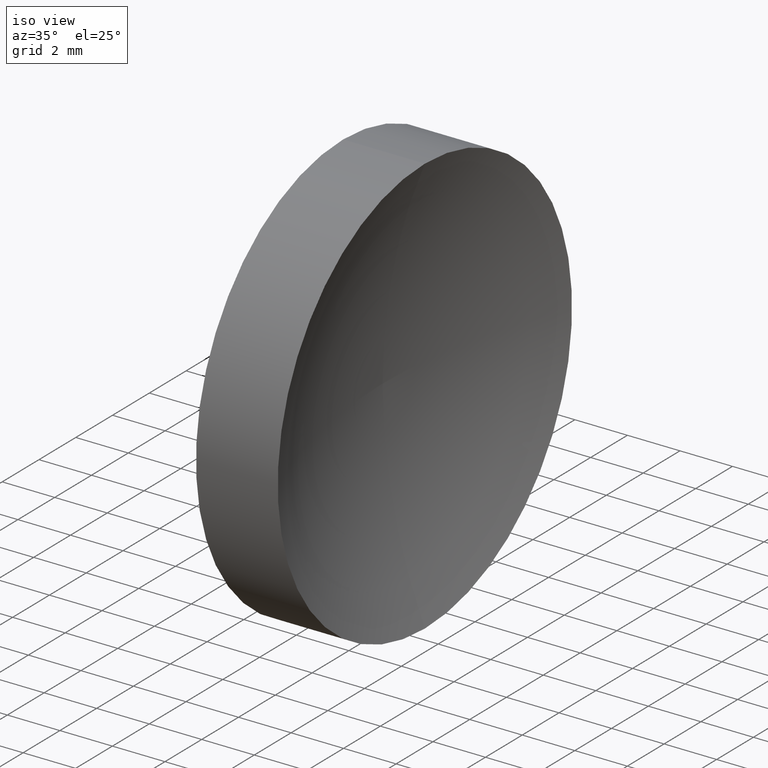
[diagram: clean part render]
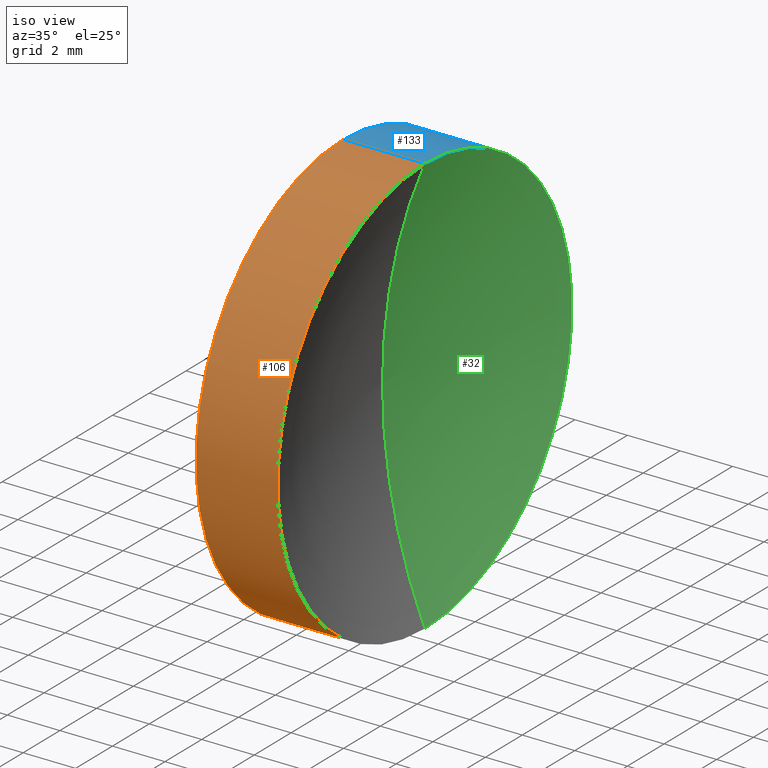
[diagram: same view with three faces highlighted in distinct colors, each labeled with its STEP entity id]
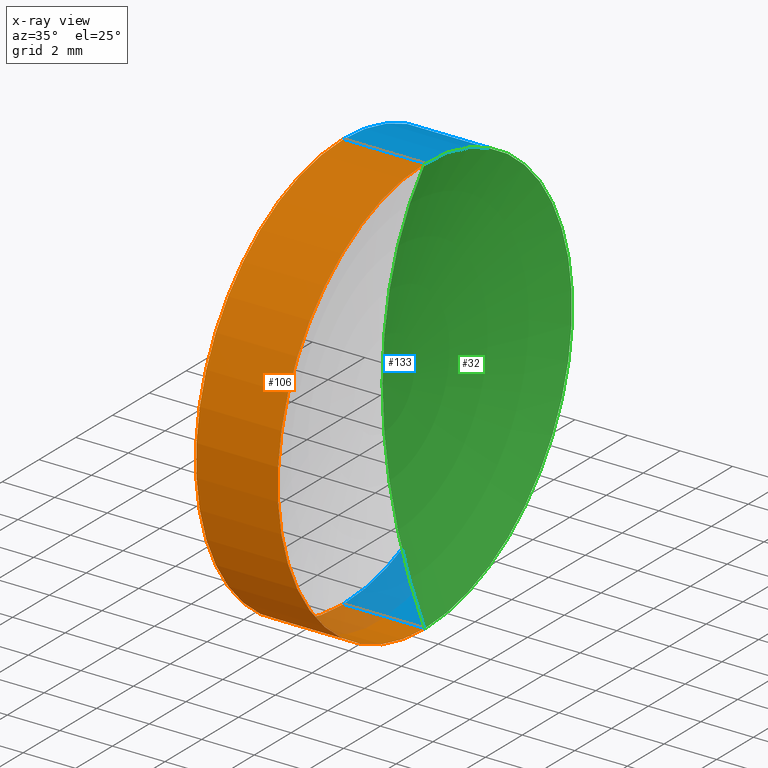
[diagram: x-ray of the same camera — body ghosted, the three highlighted faces saturated]
A machine part, iso view with three faces highlighted in distinct colors.
The next image is the same camera in x-ray (body ghosted, the three faces saturated) — at least one of them is partly hidden behind the body in this view.
Their STEP definitions:

[orange] entity #106 — the highlighted cylindrical surface (partial cylindrical patch) has radius 8 mm, axis along (-1, -0, -0).
#5 = CARTESIAN_POINT ( 'NONE',  ( 47.43122569665025200, 26.08904114919495900, 7.999999999999996400 ) ) ;
#17 = VERTEX_POINT ( 'NONE', #74 ) ;
#19 = VERTEX_POINT ( 'NONE', #75 ) ;
#20 = AXIS2_PLACEMENT_3D ( 'NONE', #154, #116, #129 ) ;
#26 = CARTESIAN_POINT ( 'NONE',  ( 42.44986111413682300, 26.08904114919495900, 8.000000000000000000 ) ) ;
#29 = CARTESIAN_POINT ( 'NONE',  ( 42.44986111413682300, 26.08904114919495900, -8.000000000000000000 ) ) ;
#41 = VECTOR ( 'NONE', #89, 1000.000000000000000 ) ;
#43 = CYLINDRICAL_SURFACE ( 'NONE', #91, 8.000000000000000000 ) ;
#48 = LINE ( 'NONE', #29, #41 ) ;
#55 = DIRECTION ( 'NONE',  ( -1.000000000000000000, -0.0000000000000000000, -0.0000000000000000000 ) ) ;
#58 = FACE_OUTER_BOUND ( 'NONE', #85, .T. ) ;
#68 = DIRECTION ( 'NONE',  ( -1.000000000000000000, -0.0000000000000000000, -0.0000000000000000000 ) ) ;
#74 = CARTESIAN_POINT ( 'NONE',  ( 44.31915269315436500, 26.08904114919495900, -8.000000000000003600 ) ) ;
#75 = CARTESIAN_POINT ( 'NONE',  ( 47.43122569665025200, 26.08904114919495900, -7.999999999999996400 ) ) ;
#76 = ORIENTED_EDGE ( 'NONE', *, *, #123, .F. ) ;
#78 = DIRECTION ( 'NONE',  ( 0.0000000000000000000, 0.0000000000000000000, 1.000000000000000000 ) ) ;
#81 = DIRECTION ( 'NONE',  ( -1.000000000000000000, -0.0000000000000000000, -0.0000000000000000000 ) ) ;
#85 = EDGE_LOOP ( 'NONE', ( #150, #124, #100, #76 ) ) ;
#88 = CIRCLE ( 'NONE', #130, 7.999999999999996400 ) ;
#89 = DIRECTION ( 'NONE',  ( -1.000000000000000000, -0.0000000000000000000, -0.0000000000000000000 ) ) ;
#91 = AXIS2_PLACEMENT_3D ( 'NONE', #159, #81, #92 ) ;
#92 = DIRECTION ( 'NONE',  ( 0.0000000000000000000, 0.0000000000000000000, 1.000000000000000000 ) ) ;
#93 = VECTOR ( 'NONE', #68, 1000.000000000000000 ) ;
#97 = VERTEX_POINT ( 'NONE', #136 ) ;
#98 = EDGE_CURVE ( 'NONE', #122, #97, #162, .T. ) ;
#100 = ORIENTED_EDGE ( 'NONE', *, *, #98, .T. ) ;
#104 = EDGE_CURVE ( 'NONE', #19, #122, #88, .T. ) ;
#106 = ADVANCED_FACE ( 'NONE', ( #58 ), #43, .T. ) ;
#116 = DIRECTION ( 'NONE',  ( -1.000000000000000000, -0.0000000000000000000, -0.0000000000000000000 ) ) ;
#122 = VERTEX_POINT ( 'NONE', #5 ) ;
#123 = EDGE_CURVE ( 'NONE', #17, #97, #143, .T. ) ;
#124 = ORIENTED_EDGE ( 'NONE', *, *, #104, .T. ) ;
#129 = DIRECTION ( 'NONE',  ( 0.0000000000000000000, 0.0000000000000000000, 1.000000000000000000 ) ) ;
#130 = AXIS2_PLACEMENT_3D ( 'NONE', #138, #55, #78 ) ;
#136 = CARTESIAN_POINT ( 'NONE',  ( 44.31915269315436500, 26.08904114919495900, 8.000000000000003600 ) ) ;
#137 = EDGE_CURVE ( 'NONE', #19, #17, #48, .T. ) ;
#138 = CARTESIAN_POINT ( 'NONE',  ( 47.43122569665025200, 26.08904114919495900, 0.0000000000000000000 ) ) ;
#143 = CIRCLE ( 'NONE', #20, 8.000000000000003600 ) ;
#150 = ORIENTED_EDGE ( 'NONE', *, *, #137, .F. ) ;
#154 = CARTESIAN_POINT ( 'NONE',  ( 44.31915269315436500, 26.08904114919495900, 0.0000000000000000000 ) ) ;
#159 = CARTESIAN_POINT ( 'NONE',  ( 42.44986111413682300, 26.08904114919495900, 0.0000000000000000000 ) ) ;
#162 = LINE ( 'NONE', #26, #93 ) ;

[blue] entity #133 — the highlighted cylindrical surface (partial cylindrical patch) has radius 8 mm, axis along (-1, -0, -0).
#5 = CARTESIAN_POINT ( 'NONE',  ( 47.43122569665025200, 26.08904114919495900, 7.999999999999996400 ) ) ;
#13 = DIRECTION ( 'NONE',  ( -1.000000000000000000, -0.0000000000000000000, -0.0000000000000000000 ) ) ;
#17 = VERTEX_POINT ( 'NONE', #74 ) ;
#19 = VERTEX_POINT ( 'NONE', #75 ) ;
#21 = CIRCLE ( 'NONE', #111, 8.000000000000003600 ) ;
#22 = AXIS2_PLACEMENT_3D ( 'NONE', #166, #151, #36 ) ;
#26 = CARTESIAN_POINT ( 'NONE',  ( 42.44986111413682300, 26.08904114919495900, 8.000000000000000000 ) ) ;
#29 = CARTESIAN_POINT ( 'NONE',  ( 42.44986111413682300, 26.08904114919495900, -8.000000000000000000 ) ) ;
#36 = DIRECTION ( 'NONE',  ( 0.0000000000000000000, 0.0000000000000000000, 1.000000000000000000 ) ) ;
#40 = DIRECTION ( 'NONE',  ( 0.0000000000000000000, 0.0000000000000000000, 1.000000000000000000 ) ) ;
#41 = VECTOR ( 'NONE', #89, 1000.000000000000000 ) ;
#45 = CIRCLE ( 'NONE', #22, 7.999999999999996400 ) ;
#48 = LINE ( 'NONE', #29, #41 ) ;
#62 = AXIS2_PLACEMENT_3D ( 'NONE', #113, #13, #40 ) ;
#68 = DIRECTION ( 'NONE',  ( -1.000000000000000000, -0.0000000000000000000, -0.0000000000000000000 ) ) ;
#69 = CARTESIAN_POINT ( 'NONE',  ( 44.31915269315436500, 26.08904114919495900, 0.0000000000000000000 ) ) ;
#72 = CYLINDRICAL_SURFACE ( 'NONE', #62, 8.000000000000000000 ) ;
#74 = CARTESIAN_POINT ( 'NONE',  ( 44.31915269315436500, 26.08904114919495900, -8.000000000000003600 ) ) ;
#75 = CARTESIAN_POINT ( 'NONE',  ( 47.43122569665025200, 26.08904114919495900, -7.999999999999996400 ) ) ;
#83 = EDGE_LOOP ( 'NONE', ( #158, #149, #153, #119 ) ) ;
#87 = EDGE_CURVE ( 'NONE', #122, #19, #45, .T. ) ;
#89 = DIRECTION ( 'NONE',  ( -1.000000000000000000, -0.0000000000000000000, -0.0000000000000000000 ) ) ;
#93 = VECTOR ( 'NONE', #68, 1000.000000000000000 ) ;
#97 = VERTEX_POINT ( 'NONE', #136 ) ;
#98 = EDGE_CURVE ( 'NONE', #122, #97, #162, .T. ) ;
#103 = EDGE_CURVE ( 'NONE', #97, #17, #21, .T. ) ;
#111 = AXIS2_PLACEMENT_3D ( 'NONE', #69, #157, #141 ) ;
#113 = CARTESIAN_POINT ( 'NONE',  ( 42.44986111413682300, 26.08904114919495900, 0.0000000000000000000 ) ) ;
#119 = ORIENTED_EDGE ( 'NONE', *, *, #98, .F. ) ;
#122 = VERTEX_POINT ( 'NONE', #5 ) ;
#132 = FACE_OUTER_BOUND ( 'NONE', #83, .T. ) ;
#133 = ADVANCED_FACE ( 'NONE', ( #132 ), #72, .T. ) ;
#136 = CARTESIAN_POINT ( 'NONE',  ( 44.31915269315436500, 26.08904114919495900, 8.000000000000003600 ) ) ;
#137 = EDGE_CURVE ( 'NONE', #19, #17, #48, .T. ) ;
#141 = DIRECTION ( 'NONE',  ( 0.0000000000000000000, 0.0000000000000000000, 1.000000000000000000 ) ) ;
#149 = ORIENTED_EDGE ( 'NONE', *, *, #137, .T. ) ;
#151 = DIRECTION ( 'NONE',  ( -1.000000000000000000, -0.0000000000000000000, -0.0000000000000000000 ) ) ;
#153 = ORIENTED_EDGE ( 'NONE', *, *, #103, .F. ) ;
#157 = DIRECTION ( 'NONE',  ( -1.000000000000000000, -0.0000000000000000000, -0.0000000000000000000 ) ) ;
#158 = ORIENTED_EDGE ( 'NONE', *, *, #87, .T. ) ;
#162 = LINE ( 'NONE', #26, #93 ) ;
#166 = CARTESIAN_POINT ( 'NONE',  ( 47.43122569665025200, 26.08904114919495900, 0.0000000000000000000 ) ) ;

[green] entity #32 — the highlighted toroidal blend (fillet) surface has major radius 0.0013 mm and minor (blend) radius 20.65 mm.
#5 = CARTESIAN_POINT ( 'NONE',  ( 47.43122569665025200, 26.08904114919495900, 7.999999999999996400 ) ) ;
#7 = EDGE_LOOP ( 'NONE', ( #66, #54, #115 ) ) ;
#9 = DIRECTION ( 'NONE',  ( 0.0000000000000000000, 0.0000000000000000000, 1.000000000000000000 ) ) ;
#10 = DIRECTION ( 'NONE',  ( 0.0000000000000000000, -1.000000000000000000, 0.0000000000000000000 ) ) ;
#16 = CARTESIAN_POINT ( 'NONE',  ( 45.81915269315437200, 26.08904114919495900, 0.0000000000000000000 ) ) ;
#19 = VERTEX_POINT ( 'NONE', #75 ) ;
#22 = AXIS2_PLACEMENT_3D ( 'NONE', #166, #151, #36 ) ;
#25 = CIRCLE ( 'NONE', #105, 20.65000000000000200 ) ;
#28 = DIRECTION ( 'NONE',  ( 0.0000000000000000000, -1.680119589323783900E-016, 1.000000000000000000 ) ) ;
#32 = ADVANCED_FACE ( 'NONE', ( #38 ), #118, .F. ) ;
#36 = DIRECTION ( 'NONE',  ( 0.0000000000000000000, 0.0000000000000000000, 1.000000000000000000 ) ) ;
#38 = FACE_OUTER_BOUND ( 'NONE', #7, .T. ) ;
#45 = CIRCLE ( 'NONE', #22, 7.999999999999996400 ) ;
#50 = CARTESIAN_POINT ( 'NONE',  ( 66.46915265469672800, 26.08904114919495900, 0.001260278013337501300 ) ) ;
#51 = CIRCLE ( 'NONE', #160, 20.65000000000000200 ) ;
#54 = ORIENTED_EDGE ( 'NONE', *, *, #87, .F. ) ;
#56 = DIRECTION ( 'NONE',  ( -0.0000000000000000000, 1.000000000000000000, 1.224646799147353200E-016 ) ) ;
#66 = ORIENTED_EDGE ( 'NONE', *, *, #101, .F. ) ;
#70 = EDGE_CURVE ( 'NONE', #122, #134, #51, .T. ) ;
#75 = CARTESIAN_POINT ( 'NONE',  ( 47.43122569665025200, 26.08904114919495900, -7.999999999999996400 ) ) ;
#86 = CARTESIAN_POINT ( 'NONE',  ( 66.46915265469672800, 26.08904114919495900, 0.0000000000000000000 ) ) ;
#87 = EDGE_CURVE ( 'NONE', #122, #19, #45, .T. ) ;
#101 = EDGE_CURVE ( 'NONE', #19, #134, #25, .T. ) ;
#105 = AXIS2_PLACEMENT_3D ( 'NONE', #114, #56, #28 ) ;
#114 = CARTESIAN_POINT ( 'NONE',  ( 66.46915265469672800, 26.08904114919495900, -0.001260278013337501300 ) ) ;
#115 = ORIENTED_EDGE ( 'NONE', *, *, #70, .T. ) ;
#118 = TOROIDAL_SURFACE ( 'NONE', #142, 0.001260278013337501300, 20.65000000000000200 ) ;
#120 = DIRECTION ( 'NONE',  ( -1.000000000000000000, -0.0000000000000000000, -0.0000000000000000000 ) ) ;
#122 = VERTEX_POINT ( 'NONE', #5 ) ;
#134 = VERTEX_POINT ( 'NONE', #16 ) ;
#142 = AXIS2_PLACEMENT_3D ( 'NONE', #86, #120, #9 ) ;
#151 = DIRECTION ( 'NONE',  ( -1.000000000000000000, -0.0000000000000000000, -0.0000000000000000000 ) ) ;
#160 = AXIS2_PLACEMENT_3D ( 'NONE', #50, #10, #164 ) ;
#164 = DIRECTION ( 'NONE',  ( 0.0000000000000000000, 0.0000000000000000000, -1.000000000000000000 ) ) ;
#166 = CARTESIAN_POINT ( 'NONE',  ( 47.43122569665025200, 26.08904114919495900, 0.0000000000000000000 ) ) ;